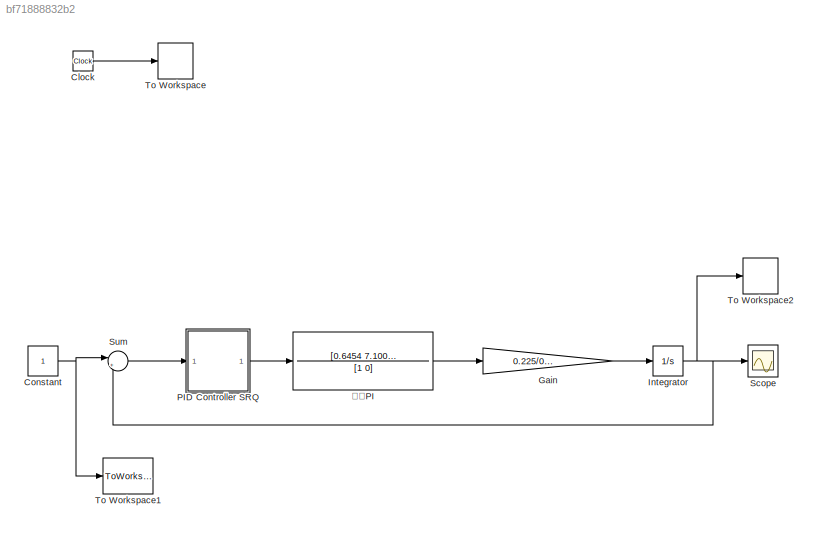
MODEL slx_bf71888832b2
KIND model
CONFIG AbsTol = auto
CONFIG EnableMultiTasking = off
CONFIG FixedStep = auto
CONFIG MaxStep = 0.001
CONFIG MinStep = auto
CONFIG RelTol = 1e-3
CONFIG SampleTimeConstraint = Unconstrained
CONFIG Solver = VariableStepAuto
CONFIG SolverName = VariableStepAuto
CONFIG StartTime = 0.0
CONFIG StopTime = 3
BLOCK [Clock] Clock
BLOCK [Constant] Constant
BLOCK [Gain] Gain
  Gain = 0.225/0.0049
  OutDataTypeStr = Inherit: Inherit via internal rule
  ParamDataTypeStr = Inherit: Inherit via internal rule
  SaturateOnIntegerOverflow = off
BLOCK [Integrator] Integrator
  Ports = [1, 1]
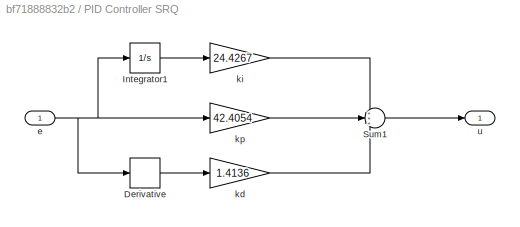
BLOCK [SubSystem] PID Controller SRQ
  Ports = [1, 1]
  RequestExecContextInheritance = off
  Variant = off
BLOCK [Derivative] PID Controller SRQ/Derivative
BLOCK [Integrator] PID Controller SRQ/Integrator1
  Ports = [1, 1]
BLOCK [Sum] PID Controller SRQ/Sum1
  IconShape = round
  InputSameDT = off
  Inputs = +++
  OutDataTypeStr = Inherit: Inherit via internal rule
  Ports = [3, 1]
  SaturateOnIntegerOverflow = off
BLOCK [Inport] PID Controller SRQ/e
  IconDisplay = Port number
BLOCK [Gain] PID Controller SRQ/kd
  Gain = 1.4136
  OutDataTypeStr = Inherit: Inherit via internal rule
  ParamDataTypeStr = Inherit: Inherit via internal rule
  SaturateOnIntegerOverflow = off
BLOCK [Gain] PID Controller SRQ/ki
  Gain = 24.4267
  OutDataTypeStr = Inherit: Inherit via internal rule
  ParamDataTypeStr = Inherit: Inherit via internal rule
  SaturateOnIntegerOverflow = off
BLOCK [Gain] PID Controller SRQ/kp
  Gain = 42.4054
  OutDataTypeStr = Inherit: Inherit via internal rule
  ParamDataTypeStr = Inherit: Inherit via internal rule
  SaturateOnIntegerOverflow = off
BLOCK [Outport] PID Controller SRQ/u
  IconDisplay = Port number
BLOCK [Scope] Scope
  NumInputPorts = 1
  Ports = [1]
  ScopeSpecificationString = Simulink.scopes.TimeScopeBlockCfg('CurrentConfiguration', extmgr.ConfigurationSet(extmgr.Configuration('Core','General UI',true),extmgr.Configuration('Core','Source UI',true),extmgr.Configuration('Sources','WiredSimulink',true),extmgr.Configuration('Visuals','Time Domain',true,'SerializedDisplays',{struct('MinYLimReal','-0.12696','MaxYLimReal','1.14268','YLabelReal','','MinYLimMag','0.00000','MaxY...<+1330ch>
BLOCK [Sum] Sum
  IconShape = round
  InputSameDT = off
  Inputs = |+-
  OutDataTypeStr = Inherit: Inherit via internal rule
  Ports = [2, 1]
  SaturateOnIntegerOverflow = off
BLOCK [ToWorkspace] To Workspace
  FixptAsFi = on
  MaxDataPoints = inf
  Ports = [1]
  SampleTime = -1
  Save2DSignal = 3-D array (concatenate along third dimension)
  VariableName = t
BLOCK [ToWorkspace] To Workspace1
  FixptAsFi = on
  MaxDataPoints = inf
  Ports = [1]
  SampleTime = -1
  Save2DSignal = 3-D array (concatenate along third dimension)
  VariableName = psi_q
BLOCK [ToWorkspace] To Workspace2
  FixptAsFi = on
  MaxDataPoints = inf
  Ports = [1]
  SampleTime = -1
  Save2DSignal = 3-D array (concatenate along third dimension)
  VariableName = psi
BLOCK [TransferFcn] 内环PI
  Denominator = [1 0]
  Numerator = [0.6454 7.1002]
LINE Clock:1 -> To Workspace:1
NET Constant:1 -> Sum:1, To Workspace1:1
LINE Gain:1 -> Integrator:1
NET Integrator:1 -> Scope:1, Sum:2, To Workspace2:1
LINE PID Controller SRQ/Derivative:1 -> PID Controller SRQ/kd:1
LINE PID Controller SRQ/Integrator1:1 -> PID Controller SRQ/ki:1
LINE PID Controller SRQ/Sum1:1 -> PID Controller SRQ/u:1
NET PID Controller SRQ/e:1 -> PID Controller SRQ/Derivative:1, PID Controller SRQ/Integrator1:1, PID Controller SRQ/kp:1
LINE PID Controller SRQ/kd:1 -> PID Controller SRQ/Sum1:3
LINE PID Controller SRQ/ki:1 -> PID Controller SRQ/Sum1:1
LINE PID Controller SRQ/kp:1 -> PID Controller SRQ/Sum1:2
LINE PID Controller SRQ:1 -> 内环PI:1
LINE Sum:1 -> PID Controller SRQ:1
LINE 内环PI:1 -> Gain:1
note: NET lines group one-source signal fan-out (src -> all destinations, sorted); 1:1 wires keep LINE
